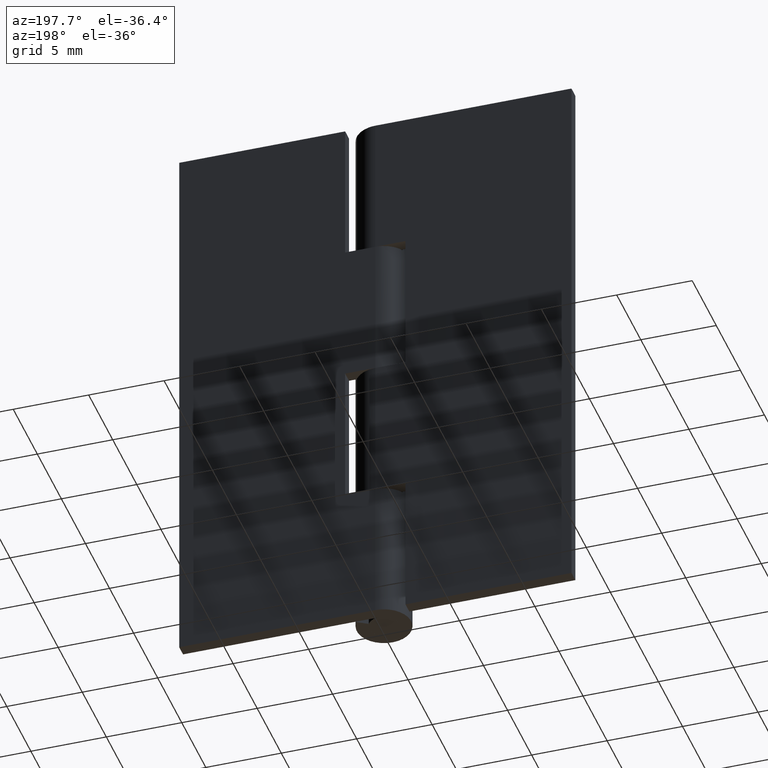
[diagram: clean part render]
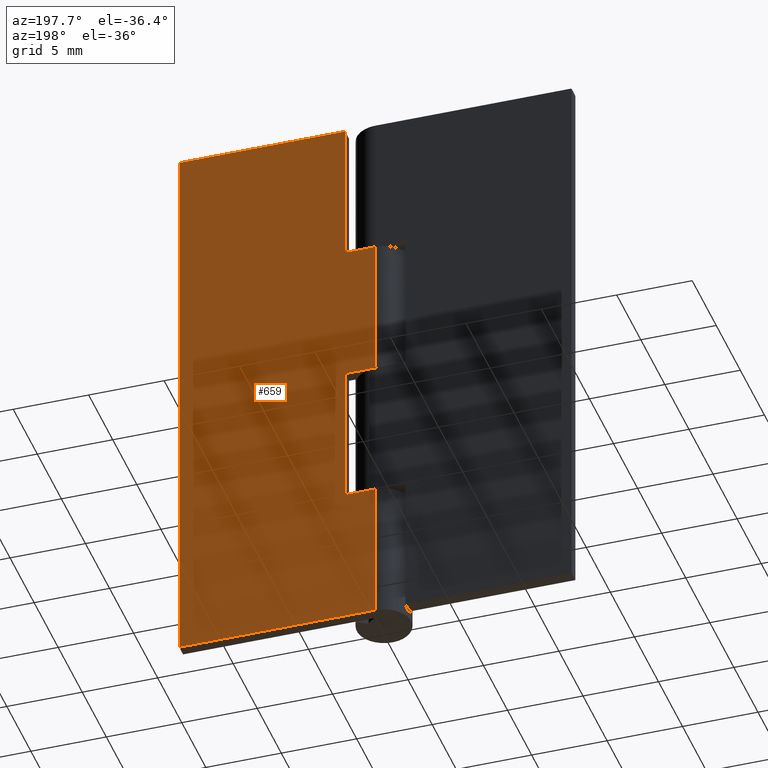
[diagram: same view with one face highlighted and labeled with its STEP entity id]
A machine part, auxiliary view. The second image highlights one B-rep face of the part: STEP entity #659.
In plain terms, the highlighted face is a freeform B-spline surface patch.
Its self-contained STEP definition (entity closure, byte-faithful):
#51=CARTESIAN_POINT('',(0.0,1.799998999999940,28.500000000000000));
#52=VERTEX_POINT('',#51);
#107=CARTESIAN_POINT('',(2.0,1.799998999999940,28.500000000000000));
#108=VERTEX_POINT('',#107);
#114=CARTESIAN_POINT('',(0.0,1.799998999999940,28.500000000000000));
#115=CARTESIAN_POINT('',(2.0,1.799998999999940,28.500000000000000));
#116=QUASI_UNIFORM_CURVE('',1,(#114,#115),.UNSPECIFIED.,.F.,.U.);
#117=EDGE_CURVE('',#52,#108,#116,.T.);
#134=CARTESIAN_POINT('',(2.0,1.799998999999940,37.999984999999903));
#135=VERTEX_POINT('',#134);
#141=CARTESIAN_POINT('',(2.0,1.799998999999940,28.500000000000000));
#142=CARTESIAN_POINT('',(2.0,1.799998999999940,37.999984999999903));
#143=QUASI_UNIFORM_CURVE('',1,(#141,#142),.UNSPECIFIED.,.F.,.U.);
#144=EDGE_CURVE('',#108,#135,#143,.T.);
#155=CARTESIAN_POINT('',(2.0,1.799998999999940,19.0));
#156=VERTEX_POINT('',#155);
#157=CARTESIAN_POINT('',(0.0,1.799998999999940,19.0));
#158=VERTEX_POINT('',#157);
#159=CARTESIAN_POINT('',(2.0,1.799998999999940,19.0));
#160=CARTESIAN_POINT('',(0.0,1.799998999999940,19.0));
#161=QUASI_UNIFORM_CURVE('',1,(#159,#160),.UNSPECIFIED.,.F.,.U.);
#162=EDGE_CURVE('',#156,#158,#161,.T.);
#235=CARTESIAN_POINT('',(0.0,1.799998999999940,9.499999999999901));
#236=VERTEX_POINT('',#235);
#291=CARTESIAN_POINT('',(2.0,1.799998999999940,9.499999999999901));
#292=VERTEX_POINT('',#291);
#298=CARTESIAN_POINT('',(0.0,1.799998999999940,9.499999999999901));
#299=CARTESIAN_POINT('',(2.0,1.799998999999940,9.499999999999901));
#300=QUASI_UNIFORM_CURVE('',1,(#298,#299),.UNSPECIFIED.,.F.,.U.);
#301=EDGE_CURVE('',#236,#292,#300,.T.);
#317=CARTESIAN_POINT('',(2.0,1.799998999999940,9.499999999999901));
#318=CARTESIAN_POINT('',(2.0,1.799998999999940,19.0));
#319=QUASI_UNIFORM_CURVE('',1,(#317,#318),.UNSPECIFIED.,.F.,.U.);
#320=EDGE_CURVE('',#292,#156,#319,.T.);
#331=CARTESIAN_POINT('',(13.0,1.799999000000000,0.0));
#332=VERTEX_POINT('',#331);
#333=CARTESIAN_POINT('',(-3.528084E-015,1.799999000000000,0.0));
#334=VERTEX_POINT('',#333);
#335=CARTESIAN_POINT('',(13.0,1.799999000000000,0.0));
#336=CARTESIAN_POINT('',(-3.528084E-015,1.799999000000000,0.0));
#337=QUASI_UNIFORM_CURVE('',1,(#335,#336),.UNSPECIFIED.,.F.,.U.);
#338=EDGE_CURVE('',#332,#334,#337,.T.);
#410=CARTESIAN_POINT('',(13.0,1.799999000000000,37.999984999999903));
#411=VERTEX_POINT('',#410);
#412=CARTESIAN_POINT('',(13.0,1.799999000000000,37.999984999999903));
#413=CARTESIAN_POINT('',(13.0,1.799999000000000,0.0));
#414=QUASI_UNIFORM_CURVE('',1,(#412,#413),.UNSPECIFIED.,.F.,.U.);
#415=EDGE_CURVE('',#411,#332,#414,.T.);
#508=CARTESIAN_POINT('',(0.0,1.799998999999940,9.499999999999901));
#509=CARTESIAN_POINT('',(-3.528084E-015,1.799999000000000,0.0));
#510=QUASI_UNIFORM_CURVE('',1,(#508,#509),.UNSPECIFIED.,.F.,.U.);
#511=EDGE_CURVE('',#236,#334,#510,.T.);
#530=CARTESIAN_POINT('',(13.0,1.799999000000000,37.999984999999903));
#531=CARTESIAN_POINT('',(2.0,1.799998999999940,37.999984999999903));
#532=QUASI_UNIFORM_CURVE('',1,(#530,#531),.UNSPECIFIED.,.F.,.U.);
#533=EDGE_CURVE('',#411,#135,#532,.T.);
#632=CARTESIAN_POINT('',(0.0,1.799998999999940,28.500000000000000));
#633=CARTESIAN_POINT('',(0.0,1.799998999999940,19.0));
#634=QUASI_UNIFORM_CURVE('',1,(#632,#633),.UNSPECIFIED.,.F.,.U.);
#635=EDGE_CURVE('',#52,#158,#634,.T.);
#642=CARTESIAN_POINT('',(-0.649349974803483,1.799999000000000,39.898084177098553));
#643=CARTESIAN_POINT('',(-0.649349974803483,1.799999000000000,-1.898100196337674));
#644=CARTESIAN_POINT('',(13.649350323490649,1.799999000000000,39.898084177098553));
#645=CARTESIAN_POINT('',(13.649350323490649,1.799999000000000,-1.898100196337674));
#646=B_SPLINE_SURFACE_WITH_KNOTS('',1,1,((#642,#644),(#643,#645)),.UNSPECIFIED.,.F.,.F.,.U.,(2,2),(2,2),(0.0,41.796184373436219),(0.0,14.298700298294129),.UNSPECIFIED.);
#647=ORIENTED_EDGE('',*,*,#117,.T.);
#648=ORIENTED_EDGE('',*,*,#144,.T.);
#649=ORIENTED_EDGE('',*,*,#533,.F.);
#650=ORIENTED_EDGE('',*,*,#415,.T.);
#651=ORIENTED_EDGE('',*,*,#338,.T.);
#652=ORIENTED_EDGE('',*,*,#511,.F.);
#653=ORIENTED_EDGE('',*,*,#301,.T.);
#654=ORIENTED_EDGE('',*,*,#320,.T.);
#655=ORIENTED_EDGE('',*,*,#162,.T.);
#656=ORIENTED_EDGE('',*,*,#635,.F.);
#657=EDGE_LOOP('',(#647,#648,#649,#650,#651,#652,#653,#654,#655,#656));
#658=FACE_OUTER_BOUND('',#657,.T.);
#659=ADVANCED_FACE('',(#658),#646,.F.);